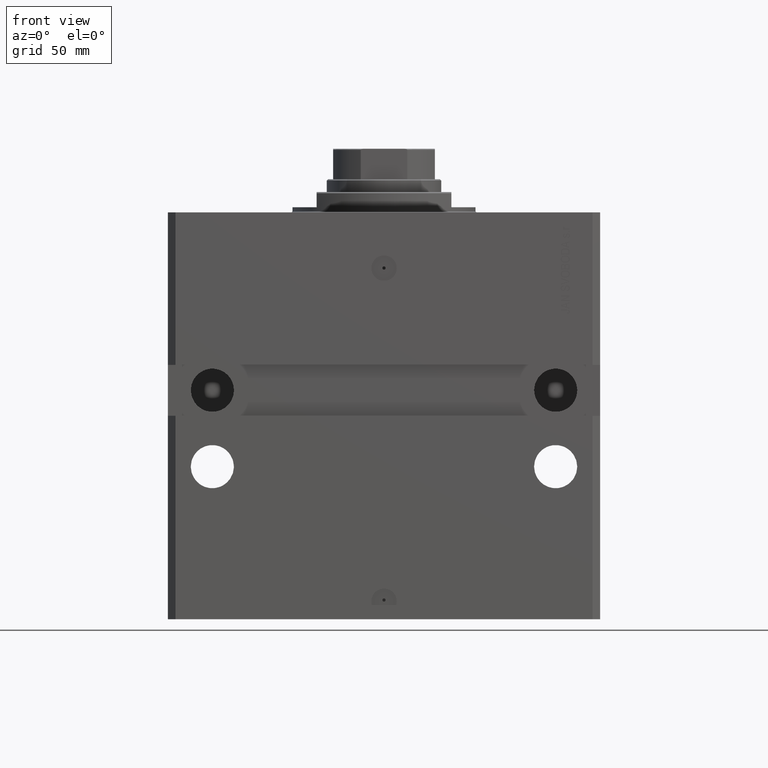
[diagram: clean part render]
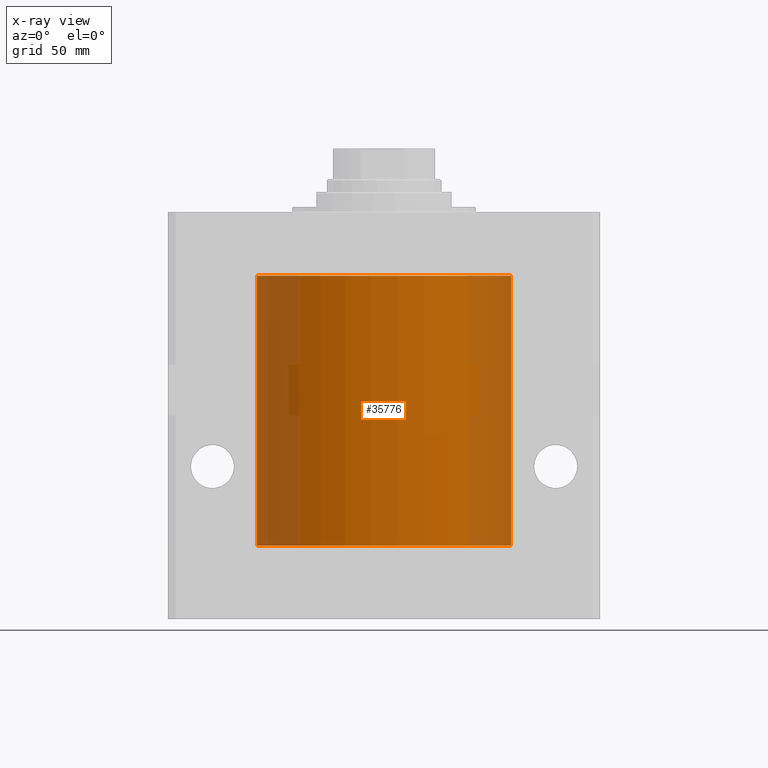
[diagram: x-ray — body ghosted, one internal face saturated and labeled with its STEP entity id]
A machine part, front view, then the same camera in x-ray: the body is ghosted and one INTERNAL B-rep face — a face not visible from any outside direction — is saturated and labeled: STEP entity #35776.
In plain terms, the highlighted cylindrical surface (partial cylindrical patch) has radius 50 mm, axis along (0, 0, 1).
Its self-contained STEP definition (entity closure, byte-faithful):
#1231 = CIRCLE ( 'NONE', #16929, 50.00000000000000000 ) ;
#1510 = AXIS2_PLACEMENT_3D ( 'NONE', #45765, #46230, #31024 ) ;
#1607 = DIRECTION ( 'NONE',  ( -0.000000000000000000, -0.000000000000000000, 1.000000000000000000 ) ) ;
#1881 = ORIENTED_EDGE ( 'NONE', *, *, #11598, .F. ) ;
#2714 = CYLINDRICAL_SURFACE ( 'NONE', #29865, 50.00000000000000000 ) ;
#3494 = ORIENTED_EDGE ( 'NONE', *, *, #23816, .F. ) ;
#3744 = CARTESIAN_POINT ( 'NONE',  ( -50.00000000000000000, 6.123233995736766085E-15, -131.0999999999999943 ) ) ;
#4487 = VERTEX_POINT ( 'NONE', #27063 ) ;
#6445 = DIRECTION ( 'NONE',  ( 1.000000000000000000, 0.000000000000000000, 0.000000000000000000 ) ) ;
#8221 = EDGE_CURVE ( 'NONE', #30019, #4487, #31212, .T. ) ;
#8380 = CARTESIAN_POINT ( 'NONE',  ( 50.00000000000000000, 0.000000000000000000, -131.0999999999999943 ) ) ;
#9968 = CARTESIAN_POINT ( 'NONE',  ( 0.000000000000000000, 0.000000000000000000, -131.0999999999999943 ) ) ;
#11598 = EDGE_CURVE ( 'NONE', #30019, #46146, #1231, .T. ) ;
#13720 = DIRECTION ( 'NONE',  ( -0.000000000000000000, -0.000000000000000000, 1.000000000000000000 ) ) ;
#16929 = AXIS2_PLACEMENT_3D ( 'NONE', #43454, #39931, #43680 ) ;
#19933 = VECTOR ( 'NONE', #45484, 1000.000000000000000 ) ;
#20841 = EDGE_CURVE ( 'NONE', #4487, #32156, #42575, .T. ) ;
#23816 = EDGE_CURVE ( 'NONE', #46146, #32156, #33847, .T. ) ;
#24145 = ORIENTED_EDGE ( 'NONE', *, *, #20841, .T. ) ;
#26476 = ORIENTED_EDGE ( 'NONE', *, *, #8221, .T. ) ;
#27063 = CARTESIAN_POINT ( 'NONE',  ( -50.00000000000000000, 6.123233995736766085E-15, -24.99999999999999289 ) ) ;
#29865 = AXIS2_PLACEMENT_3D ( 'NONE', #9968, #13720, #6445 ) ;
#30019 = VERTEX_POINT ( 'NONE', #3744 ) ;
#31024 = DIRECTION ( 'NONE',  ( 1.000000000000000000, 0.000000000000000000, 0.000000000000000000 ) ) ;
#31212 = LINE ( 'NONE', #39550, #19933 ) ;
#32156 = VERTEX_POINT ( 'NONE', #37795 ) ;
#33847 = LINE ( 'NONE', #8380, #34078 ) ;
#34078 = VECTOR ( 'NONE', #1607, 1000.000000000000000 ) ;
#34726 = FACE_OUTER_BOUND ( 'NONE', #38415, .T. ) ;
#35776 = ADVANCED_FACE ( 'NONE', ( #34726 ), #2714, .F. ) ;
#37795 = CARTESIAN_POINT ( 'NONE',  ( 50.00000000000000000, 0.000000000000000000, -24.99999999999999289 ) ) ;
#38415 = EDGE_LOOP ( 'NONE', ( #1881, #26476, #24145, #3494 ) ) ;
#39550 = CARTESIAN_POINT ( 'NONE',  ( -50.00000000000000000, 6.123233995736766085E-15, -131.0999999999999943 ) ) ;
#39931 = DIRECTION ( 'NONE',  ( 0.000000000000000000, 0.000000000000000000, 1.000000000000000000 ) ) ;
#40551 = CARTESIAN_POINT ( 'NONE',  ( 50.00000000000000000, 0.000000000000000000, -131.0999999999999943 ) ) ;
#42575 = CIRCLE ( 'NONE', #1510, 50.00000000000000000 ) ;
#43454 = CARTESIAN_POINT ( 'NONE',  ( 0.000000000000000000, 0.000000000000000000, -131.0999999999999943 ) ) ;
#43680 = DIRECTION ( 'NONE',  ( 1.000000000000000000, 0.000000000000000000, 0.000000000000000000 ) ) ;
#45484 = DIRECTION ( 'NONE',  ( -0.000000000000000000, -0.000000000000000000, 1.000000000000000000 ) ) ;
#45765 = CARTESIAN_POINT ( 'NONE',  ( 0.000000000000000000, 0.000000000000000000, -24.99999999999999289 ) ) ;
#46146 = VERTEX_POINT ( 'NONE', #40551 ) ;
#46230 = DIRECTION ( 'NONE',  ( 0.000000000000000000, 0.000000000000000000, 1.000000000000000000 ) ) ;